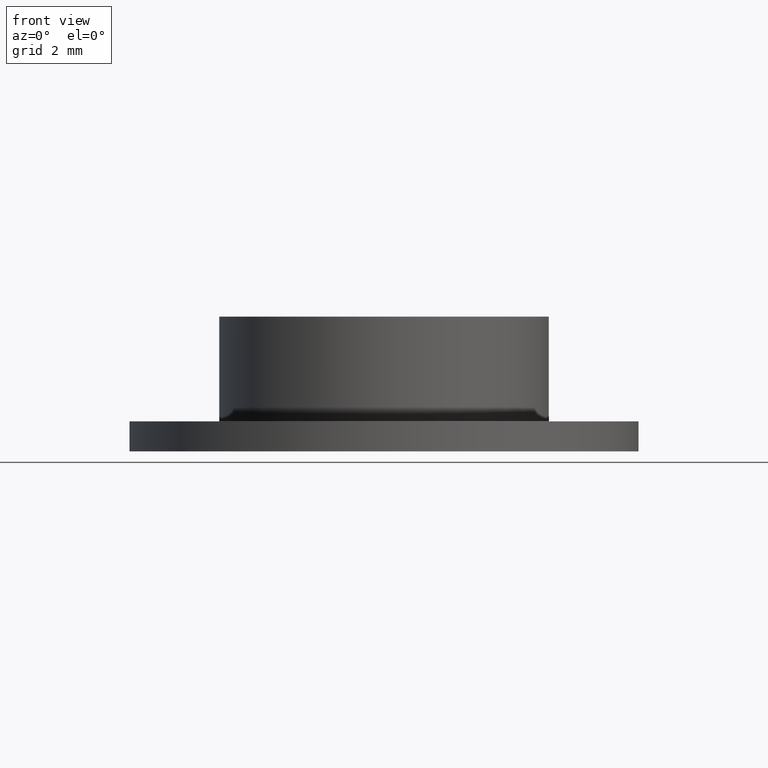
[diagram: clean part render]
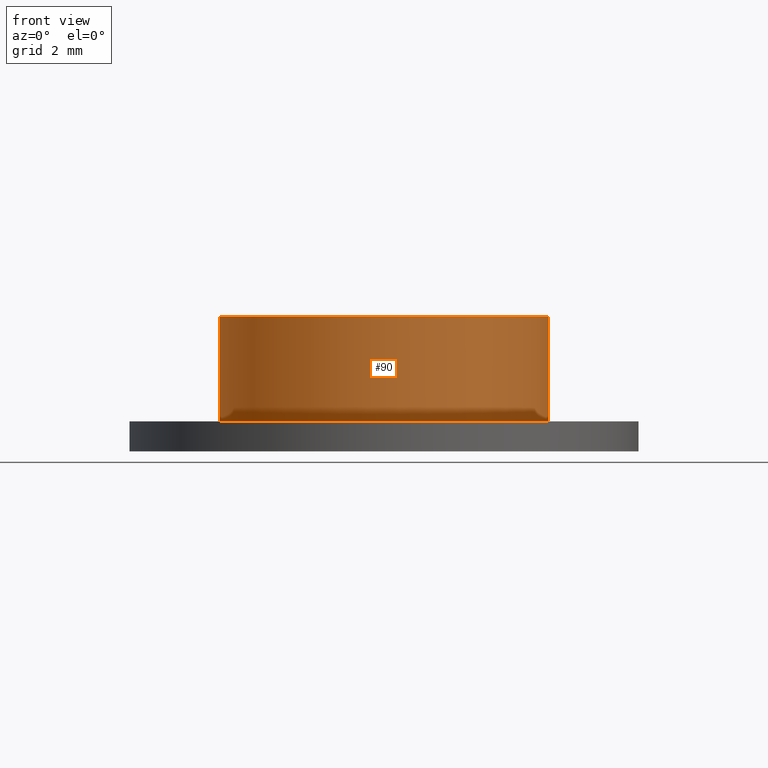
[diagram: same view with one face highlighted and labeled with its STEP entity id]
A machine part, front view. The second image highlights one B-rep face of the part: STEP entity #90.
In plain terms, the highlighted cylindrical surface (bore or boss wall) has radius 5.5 mm, axis along (0, 0, 1).
Its self-contained STEP definition (entity closure, byte-faithful):
#22=FACE_OUTER_BOUND('',#28,.T.);
#28=EDGE_LOOP('',(#71,#72,#73,#74));
#37=LINE('',#172,#40);
#40=VECTOR('',#143,5.5);
#45=CIRCLE('',#120,5.5);
#46=CIRCLE('',#121,5.5);
#52=VERTEX_POINT('',#169);
#53=VERTEX_POINT('',#171);
#60=EDGE_CURVE('',#52,#52,#45,.T.);
#61=EDGE_CURVE('',#52,#53,#37,.T.);
#62=EDGE_CURVE('',#53,#53,#46,.T.);
#71=ORIENTED_EDGE('',*,*,#60,.F.);
#72=ORIENTED_EDGE('',*,*,#61,.T.);
#73=ORIENTED_EDGE('',*,*,#62,.F.);
#74=ORIENTED_EDGE('',*,*,#61,.F.);
#87=CYLINDRICAL_SURFACE('',#119,5.5);
#90=ADVANCED_FACE('',(#22),#87,.T.);
#119=AXIS2_PLACEMENT_3D('',#168,#139,#140);
#120=AXIS2_PLACEMENT_3D('',#170,#141,#142);
#121=AXIS2_PLACEMENT_3D('',#173,#144,#145);
#139=DIRECTION('center_axis',(0.,0.,1.));
#140=DIRECTION('ref_axis',(-1.,0.,0.));
#141=DIRECTION('center_axis',(0.,0.,1.));
#142=DIRECTION('ref_axis',(-1.,0.,0.));
#143=DIRECTION('',(0.,0.,-1.));
#144=DIRECTION('center_axis',(0.,0.,-1.));
#145=DIRECTION('ref_axis',(-1.,0.,0.));
#168=CARTESIAN_POINT('Origin',(0.,0.,1.));
#169=CARTESIAN_POINT('',(5.5,6.73555739531044E-16,4.5));
#170=CARTESIAN_POINT('Origin',(0.,0.,4.5));
#171=CARTESIAN_POINT('',(5.5,6.73555739531044E-16,1.));
#172=CARTESIAN_POINT('',(5.5,6.73555739531044E-16,1.));
#173=CARTESIAN_POINT('Origin',(0.,0.,1.));